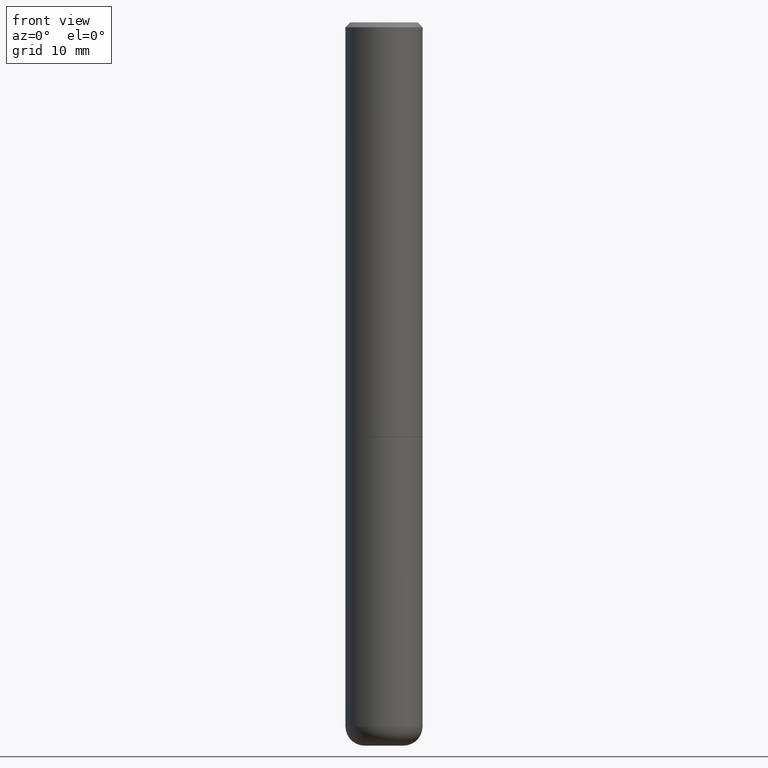
[diagram: clean part render]
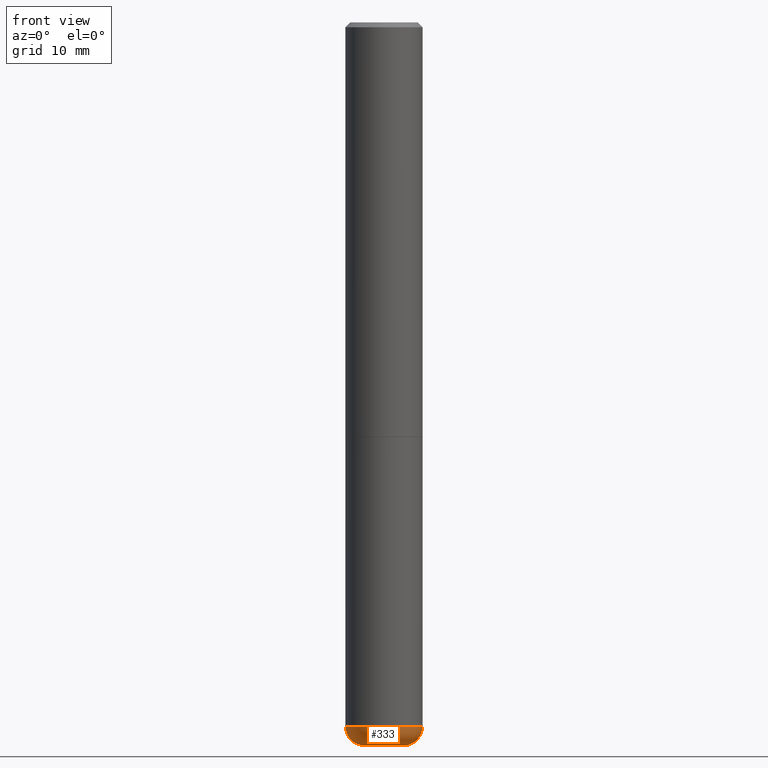
[diagram: same view with one face highlighted and labeled with its STEP entity id]
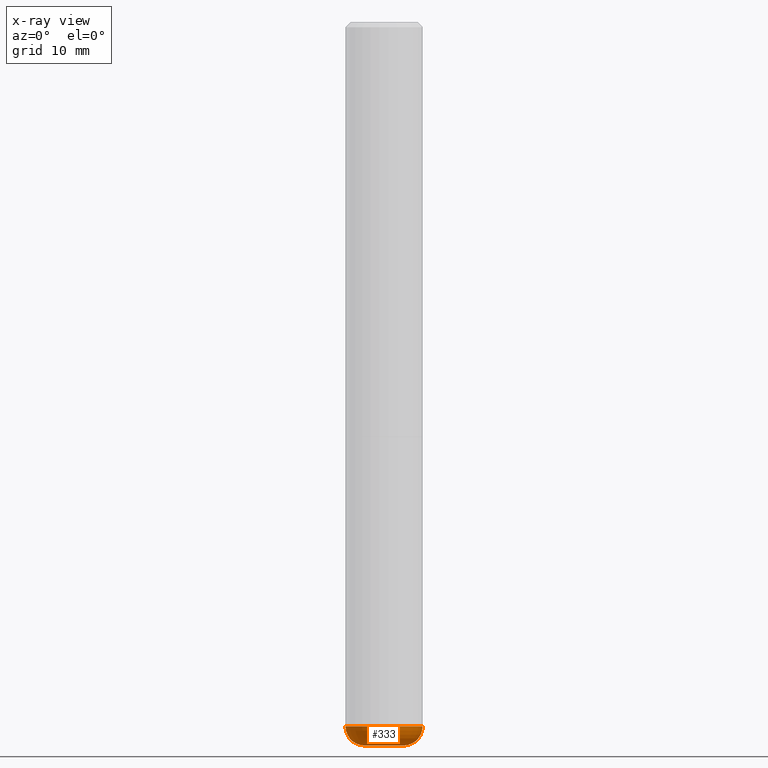
[diagram: x-ray of the same camera — body ghosted, the highlighted face saturated]
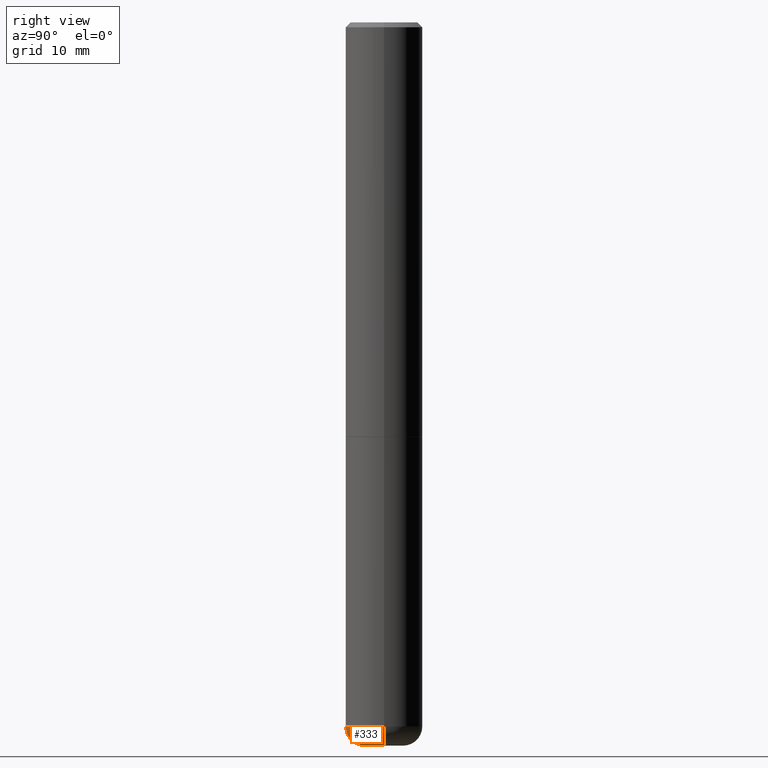
[diagram: same view with one face highlighted and labeled with its STEP entity id]
A machine part, front view. The second image highlights one B-rep face of the part: STEP entity #333.
The next image is the same camera in x-ray: the body ghosted, the highlighted face saturated — about 0% of this face is hidden behind the body in this view.
A second angle (right view) of the same face is appended — the face is thin or edge-on in the first view.
In plain terms, the highlighted toroidal blend (fillet) surface has major radius 2.0015 mm and minor (blend) radius 1.999 mm.
Its self-contained STEP definition (entity closure, byte-faithful):
#13 = AXIS2_PLACEMENT_3D ( 'NONE', #98, #261, #59 ) ;
#27 = DIRECTION ( 'NONE',  ( 1.000000000000000000, -6.982962677686261977E-15, 0.000000000000000000 ) ) ;
#39 = CARTESIAN_POINT ( 'NONE',  ( -0.07880000000000000893, -9.332750064352005228E-15, -2.952799999999999869 ) ) ;
#53 = EDGE_LOOP ( 'NONE', ( #153, #346, #167, #324 ) ) ;
#59 = DIRECTION ( 'NONE',  ( 1.000000000000000000, -6.982962677686263555E-15, 4.883557194083111780E-29 ) ) ;
#84 = AXIS2_PLACEMENT_3D ( 'NONE', #361, #331, #259 ) ;
#96 = CARTESIAN_POINT ( 'NONE',  ( 0.07880000000000000893, -1.085990355633771696E-14, -2.952799999999999869 ) ) ;
#98 = CARTESIAN_POINT ( 'NONE',  ( 7.028521895856700897E-29, -1.003486651596908519E-14, -2.874099999999999877 ) ) ;
#107 = VERTEX_POINT ( 'NONE', #96 ) ;
#127 = TOROIDAL_SURFACE ( 'NONE', #13, 0.07879999999999999505, 0.07869999999999995055 ) ;
#132 = VERTEX_POINT ( 'NONE', #39 ) ;
#140 = EDGE_CURVE ( 'NONE', #107, #384, #172, .T. ) ;
#153 = ORIENTED_EDGE ( 'NONE', *, *, #271, .F. ) ;
#167 = ORIENTED_EDGE ( 'NONE', *, *, #140, .T. ) ;
#172 = CIRCLE ( 'NONE', #84, 0.07869999999999996443 ) ;
#203 = DIRECTION ( 'NONE',  ( -2.445468806185136597E-29, 3.491481338843145583E-15, 1.000000000000000000 ) ) ;
#217 = CIRCLE ( 'NONE', #269, 0.07880000000000000893 ) ;
#225 = FACE_OUTER_BOUND ( 'NONE', #53, .T. ) ;
#232 = AXIS2_PLACEMENT_3D ( 'NONE', #363, #381, #27 ) ;
#245 = DIRECTION ( 'NONE',  ( 7.105427357601001859E-15, 1.000000000000000000, -3.491481338843145583E-15 ) ) ;
#259 = DIRECTION ( 'NONE',  ( 1.000000000000000000, -6.982962677686273021E-15, 0.000000000000000000 ) ) ;
#261 = DIRECTION ( 'NONE',  ( -2.445468806185136597E-29, 3.491481338843145583E-15, 1.000000000000000000 ) ) ;
#269 = AXIS2_PLACEMENT_3D ( 'NONE', #283, #203, #325 ) ;
#271 = EDGE_CURVE ( 'NONE', #132, #380, #412, .T. ) ;
#277 = CARTESIAN_POINT ( 'NONE',  ( -0.07879999999999999505, -9.474958840190126376E-15, -2.874099999999999877 ) ) ;
#283 = CARTESIAN_POINT ( 'NONE',  ( 7.220980290903470182E-29, -1.030964609733603853E-14, -2.952799999999999869 ) ) ;
#303 = CARTESIAN_POINT ( 'NONE',  ( -0.1574999999999999456, -8.915761707146927585E-15, -2.874099999999999877 ) ) ;
#306 = EDGE_CURVE ( 'NONE', #380, #384, #402, .T. ) ;
#324 = ORIENTED_EDGE ( 'NONE', *, *, #306, .F. ) ;
#325 = DIRECTION ( 'NONE',  ( 1.000000000000000000, -6.982962677686277755E-15, 0.000000000000000000 ) ) ;
#326 = EDGE_CURVE ( 'NONE', #132, #107, #217, .T. ) ;
#328 = AXIS2_PLACEMENT_3D ( 'NONE', #277, #245, #344 ) ;
#331 = DIRECTION ( 'NONE',  ( -6.982962677686266711E-15, -1.000000000000000000, 3.491481338843145583E-15 ) ) ;
#333 = ADVANCED_FACE ( 'NONE', ( #225 ), #127, .T. ) ;
#344 = DIRECTION ( 'NONE',  ( -1.000000000000000000, 7.105427357600995548E-15, 0.000000000000000000 ) ) ;
#346 = ORIENTED_EDGE ( 'NONE', *, *, #326, .T. ) ;
#361 = CARTESIAN_POINT ( 'NONE',  ( 0.07879999999999999505, -1.058512397497076362E-14, -2.874099999999999877 ) ) ;
#363 = CARTESIAN_POINT ( 'NONE',  ( 7.028521895856700897E-29, -1.003486651596908519E-14, -2.874099999999999877 ) ) ;
#370 = CARTESIAN_POINT ( 'NONE',  ( 0.1574999999999999456, -1.113468313770467030E-14, -2.874099999999999877 ) ) ;
#380 = VERTEX_POINT ( 'NONE', #303 ) ;
#381 = DIRECTION ( 'NONE',  ( -2.445468806185136597E-29, 3.491481338843145583E-15, 1.000000000000000000 ) ) ;
#384 = VERTEX_POINT ( 'NONE', #370 ) ;
#402 = CIRCLE ( 'NONE', #232, 0.1575000000000000011 ) ;
#412 = CIRCLE ( 'NONE', #328, 0.07869999999999996443 ) ;